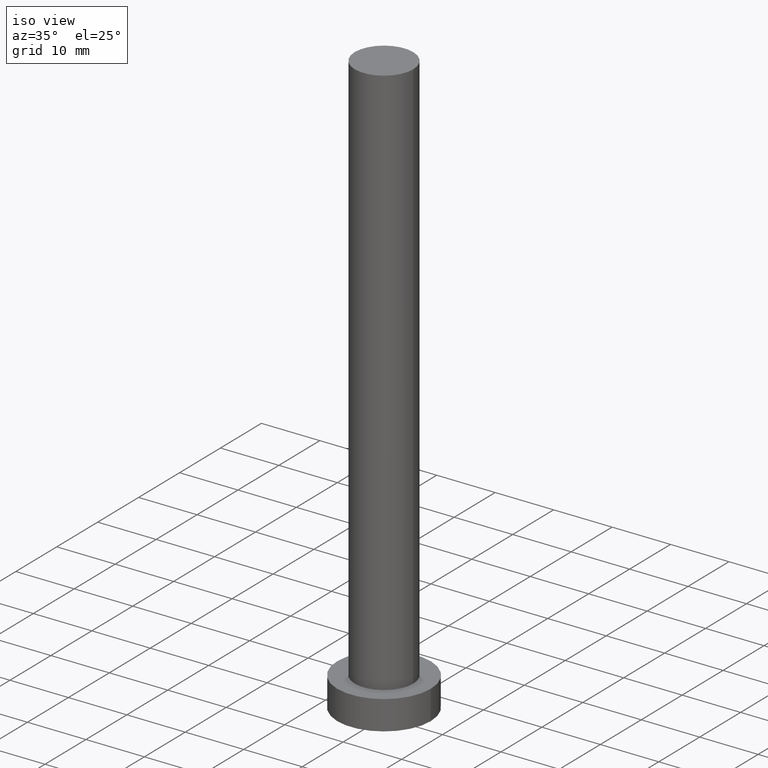
[diagram: clean part render]
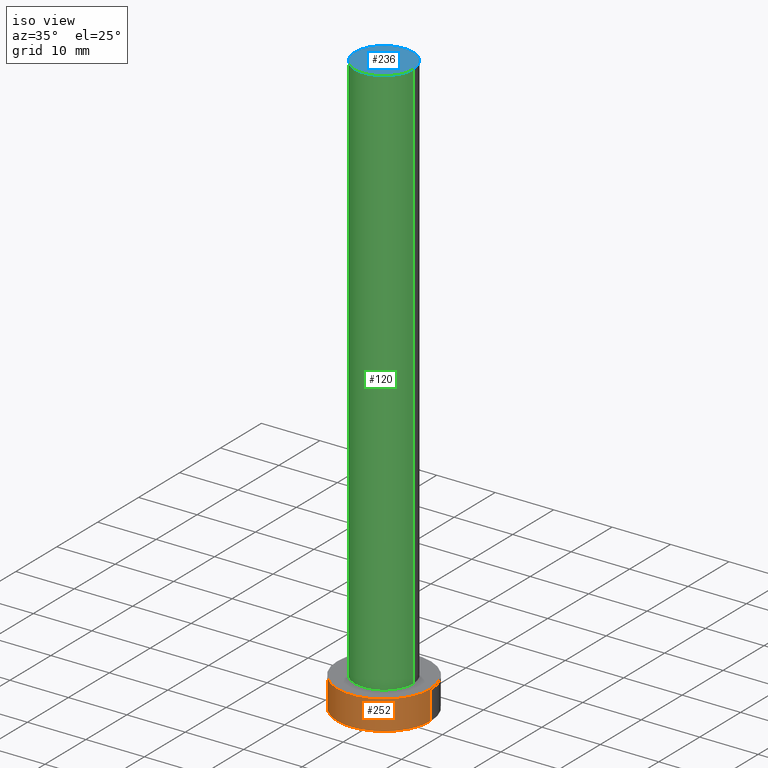
[diagram: same view with three faces highlighted in distinct colors, each labeled with its STEP entity id]
A machine part, iso view with three faces highlighted in distinct colors.
Their STEP definitions:

[orange] entity #252 — the highlighted cylindrical surface (partial cylindrical patch) has radius 8 mm, axis along (-0, -0, -1).
#5 = CARTESIAN_POINT ( 'NONE',  ( -8.000000000000000000, 0.000000000000000000, 5.000000000000000000 ) ) ;
#18 = EDGE_CURVE ( 'NONE', #102, #76, #247, .T. ) ;
#23 = LINE ( 'NONE', #67, #151 ) ;
#28 = DIRECTION ( 'NONE',  ( 0.000000000000000000, 0.000000000000000000, 1.000000000000000000 ) ) ;
#31 = AXIS2_PLACEMENT_3D ( 'NONE', #141, #80, #60 ) ;
#43 = EDGE_CURVE ( 'NONE', #102, #57, #119, .T. ) ;
#51 = CARTESIAN_POINT ( 'NONE',  ( 8.000000000000000000, 9.797174393178825657E-16, 0.000000000000000000 ) ) ;
#57 = VERTEX_POINT ( 'NONE', #182 ) ;
#58 = AXIS2_PLACEMENT_3D ( 'NONE', #166, #28, #242 ) ;
#60 = DIRECTION ( 'NONE',  ( 1.000000000000000000, 0.000000000000000000, 0.000000000000000000 ) ) ;
#67 = CARTESIAN_POINT ( 'NONE',  ( 8.000000000000000000, 9.797174393178825657E-16, 5.000000000000000000 ) ) ;
#71 = CARTESIAN_POINT ( 'NONE',  ( -8.000000000000000000, 0.000000000000000000, 5.000000000000000000 ) ) ;
#74 = EDGE_LOOP ( 'NONE', ( #155, #177, #249, #98 ) ) ;
#76 = VERTEX_POINT ( 'NONE', #205 ) ;
#80 = DIRECTION ( 'NONE',  ( 0.000000000000000000, 0.000000000000000000, 1.000000000000000000 ) ) ;
#81 = VECTOR ( 'NONE', #122, 1000.000000000000000 ) ;
#98 = ORIENTED_EDGE ( 'NONE', *, *, #172, .T. ) ;
#100 = CYLINDRICAL_SURFACE ( 'NONE', #192, 8.000000000000000000 ) ;
#102 = VERTEX_POINT ( 'NONE', #71 ) ;
#118 = CARTESIAN_POINT ( 'NONE',  ( 0.000000000000000000, 0.000000000000000000, 5.000000000000000000 ) ) ;
#119 = LINE ( 'NONE', #5, #81 ) ;
#122 = DIRECTION ( 'NONE',  ( -0.000000000000000000, -0.000000000000000000, -1.000000000000000000 ) ) ;
#125 = EDGE_CURVE ( 'NONE', #76, #181, #23, .T. ) ;
#126 = DIRECTION ( 'NONE',  ( -1.000000000000000000, 0.000000000000000000, 0.000000000000000000 ) ) ;
#141 = CARTESIAN_POINT ( 'NONE',  ( 0.000000000000000000, 0.000000000000000000, 5.000000000000000000 ) ) ;
#145 = DIRECTION ( 'NONE',  ( -0.000000000000000000, -0.000000000000000000, -1.000000000000000000 ) ) ;
#148 = CIRCLE ( 'NONE', #58, 8.000000000000000000 ) ;
#151 = VECTOR ( 'NONE', #145, 1000.000000000000000 ) ;
#155 = ORIENTED_EDGE ( 'NONE', *, *, #125, .F. ) ;
#166 = CARTESIAN_POINT ( 'NONE',  ( 0.000000000000000000, 0.000000000000000000, 0.000000000000000000 ) ) ;
#172 = EDGE_CURVE ( 'NONE', #57, #181, #148, .T. ) ;
#177 = ORIENTED_EDGE ( 'NONE', *, *, #18, .F. ) ;
#181 = VERTEX_POINT ( 'NONE', #51 ) ;
#182 = CARTESIAN_POINT ( 'NONE',  ( -8.000000000000000000, 0.000000000000000000, 0.000000000000000000 ) ) ;
#192 = AXIS2_PLACEMENT_3D ( 'NONE', #118, #195, #126 ) ;
#195 = DIRECTION ( 'NONE',  ( -0.000000000000000000, -0.000000000000000000, -1.000000000000000000 ) ) ;
#205 = CARTESIAN_POINT ( 'NONE',  ( 8.000000000000000000, 9.797174393178825657E-16, 5.000000000000000000 ) ) ;
#213 = FACE_OUTER_BOUND ( 'NONE', #74, .T. ) ;
#242 = DIRECTION ( 'NONE',  ( 1.000000000000000000, 0.000000000000000000, 0.000000000000000000 ) ) ;
#247 = CIRCLE ( 'NONE', #31, 8.000000000000000000 ) ;
#249 = ORIENTED_EDGE ( 'NONE', *, *, #43, .T. ) ;
#252 = ADVANCED_FACE ( 'NONE', ( #213 ), #100, .T. ) ;

[blue] entity #236 — the highlighted planar face has unit normal (0, 0, 1).
#8 = EDGE_CURVE ( 'NONE', #253, #158, #197, .T. ) ;
#20 = EDGE_LOOP ( 'NONE', ( #228, #255 ) ) ;
#25 = CARTESIAN_POINT ( 'NONE',  ( 0.000000000000000000, 0.000000000000000000, 100.0000000000000000 ) ) ;
#36 = CARTESIAN_POINT ( 'NONE',  ( 0.000000000000000000, 0.000000000000000000, 100.0000000000000000 ) ) ;
#68 = DIRECTION ( 'NONE',  ( 1.000000000000000000, 0.000000000000000000, 0.000000000000000000 ) ) ;
#79 = FACE_OUTER_BOUND ( 'NONE', #20, .T. ) ;
#88 = CARTESIAN_POINT ( 'NONE',  ( 5.000000000000000000, 6.123233995736766282E-16, 100.0000000000000000 ) ) ;
#104 = CARTESIAN_POINT ( 'NONE',  ( 0.000000000000000000, 0.000000000000000000, 100.0000000000000000 ) ) ;
#134 = EDGE_CURVE ( 'NONE', #158, #253, #183, .T. ) ;
#138 = AXIS2_PLACEMENT_3D ( 'NONE', #25, #187, #68 ) ;
#157 = DIRECTION ( 'NONE',  ( 0.000000000000000000, 0.000000000000000000, 1.000000000000000000 ) ) ;
#158 = VERTEX_POINT ( 'NONE', #88 ) ;
#165 = CARTESIAN_POINT ( 'NONE',  ( -5.000000000000000000, 0.000000000000000000, 100.0000000000000000 ) ) ;
#176 = PLANE ( 'NONE',  #243 ) ;
#183 = CIRCLE ( 'NONE', #138, 5.000000000000000000 ) ;
#187 = DIRECTION ( 'NONE',  ( 0.000000000000000000, 0.000000000000000000, 1.000000000000000000 ) ) ;
#197 = CIRCLE ( 'NONE', #241, 5.000000000000000000 ) ;
#218 = DIRECTION ( 'NONE',  ( 1.000000000000000000, 0.000000000000000000, 0.000000000000000000 ) ) ;
#228 = ORIENTED_EDGE ( 'NONE', *, *, #8, .T. ) ;
#234 = DIRECTION ( 'NONE',  ( 1.000000000000000000, 0.000000000000000000, -0.000000000000000000 ) ) ;
#236 = ADVANCED_FACE ( 'NONE', ( #79 ), #176, .T. ) ;
#237 = DIRECTION ( 'NONE',  ( 0.000000000000000000, 0.000000000000000000, 1.000000000000000000 ) ) ;
#241 = AXIS2_PLACEMENT_3D ( 'NONE', #104, #237, #218 ) ;
#243 = AXIS2_PLACEMENT_3D ( 'NONE', #36, #157, #234 ) ;
#253 = VERTEX_POINT ( 'NONE', #165 ) ;
#255 = ORIENTED_EDGE ( 'NONE', *, *, #134, .T. ) ;

[green] entity #120 — the highlighted cylindrical surface (edge-blend (fillet) strip) has radius 5 mm, axis along (-0, -0, -1).
#2 = LINE ( 'NONE', #89, #175 ) ;
#3 = AXIS2_PLACEMENT_3D ( 'NONE', #147, #12, #86 ) ;
#8 = EDGE_CURVE ( 'NONE', #253, #158, #197, .T. ) ;
#10 = FACE_OUTER_BOUND ( 'NONE', #41, .T. ) ;
#12 = DIRECTION ( 'NONE',  ( -0.000000000000000000, -0.000000000000000000, -1.000000000000000000 ) ) ;
#17 = AXIS2_PLACEMENT_3D ( 'NONE', #19, #130, #56 ) ;
#19 = CARTESIAN_POINT ( 'NONE',  ( 0.000000000000000000, 0.000000000000000000, 5.000000000000000000 ) ) ;
#41 = EDGE_LOOP ( 'NONE', ( #214, #77, #101, #202 ) ) ;
#42 = VERTEX_POINT ( 'NONE', #137 ) ;
#44 = VECTOR ( 'NONE', #75, 1000.000000000000000 ) ;
#56 = DIRECTION ( 'NONE',  ( 1.000000000000000000, 0.000000000000000000, 0.000000000000000000 ) ) ;
#75 = DIRECTION ( 'NONE',  ( -0.000000000000000000, -0.000000000000000000, -1.000000000000000000 ) ) ;
#77 = ORIENTED_EDGE ( 'NONE', *, *, #8, .F. ) ;
#86 = DIRECTION ( 'NONE',  ( -1.000000000000000000, 0.000000000000000000, 0.000000000000000000 ) ) ;
#88 = CARTESIAN_POINT ( 'NONE',  ( 5.000000000000000000, 6.123233995736766282E-16, 100.0000000000000000 ) ) ;
#89 = CARTESIAN_POINT ( 'NONE',  ( -5.000000000000000000, 0.000000000000000000, 100.0000000000000000 ) ) ;
#92 = CARTESIAN_POINT ( 'NONE',  ( 5.000000000000000000, 6.123233995736766282E-16, 5.000000000000000000 ) ) ;
#94 = LINE ( 'NONE', #170, #44 ) ;
#101 = ORIENTED_EDGE ( 'NONE', *, *, #103, .T. ) ;
#103 = EDGE_CURVE ( 'NONE', #253, #42, #2, .T. ) ;
#104 = CARTESIAN_POINT ( 'NONE',  ( 0.000000000000000000, 0.000000000000000000, 100.0000000000000000 ) ) ;
#107 = CYLINDRICAL_SURFACE ( 'NONE', #3, 5.000000000000000000 ) ;
#115 = CIRCLE ( 'NONE', #17, 5.000000000000000000 ) ;
#120 = ADVANCED_FACE ( 'NONE', ( #10 ), #107, .T. ) ;
#130 = DIRECTION ( 'NONE',  ( 0.000000000000000000, 0.000000000000000000, 1.000000000000000000 ) ) ;
#137 = CARTESIAN_POINT ( 'NONE',  ( -5.000000000000000000, 0.000000000000000000, 5.000000000000000000 ) ) ;
#147 = CARTESIAN_POINT ( 'NONE',  ( 0.000000000000000000, 0.000000000000000000, 100.0000000000000000 ) ) ;
#158 = VERTEX_POINT ( 'NONE', #88 ) ;
#165 = CARTESIAN_POINT ( 'NONE',  ( -5.000000000000000000, 0.000000000000000000, 100.0000000000000000 ) ) ;
#170 = CARTESIAN_POINT ( 'NONE',  ( 5.000000000000000000, 6.123233995736766282E-16, 100.0000000000000000 ) ) ;
#175 = VECTOR ( 'NONE', #184, 1000.000000000000000 ) ;
#184 = DIRECTION ( 'NONE',  ( -0.000000000000000000, -0.000000000000000000, -1.000000000000000000 ) ) ;
#196 = VERTEX_POINT ( 'NONE', #92 ) ;
#197 = CIRCLE ( 'NONE', #241, 5.000000000000000000 ) ;
#202 = ORIENTED_EDGE ( 'NONE', *, *, #225, .T. ) ;
#214 = ORIENTED_EDGE ( 'NONE', *, *, #216, .F. ) ;
#216 = EDGE_CURVE ( 'NONE', #158, #196, #94, .T. ) ;
#218 = DIRECTION ( 'NONE',  ( 1.000000000000000000, 0.000000000000000000, 0.000000000000000000 ) ) ;
#225 = EDGE_CURVE ( 'NONE', #42, #196, #115, .T. ) ;
#237 = DIRECTION ( 'NONE',  ( 0.000000000000000000, 0.000000000000000000, 1.000000000000000000 ) ) ;
#241 = AXIS2_PLACEMENT_3D ( 'NONE', #104, #237, #218 ) ;
#253 = VERTEX_POINT ( 'NONE', #165 ) ;